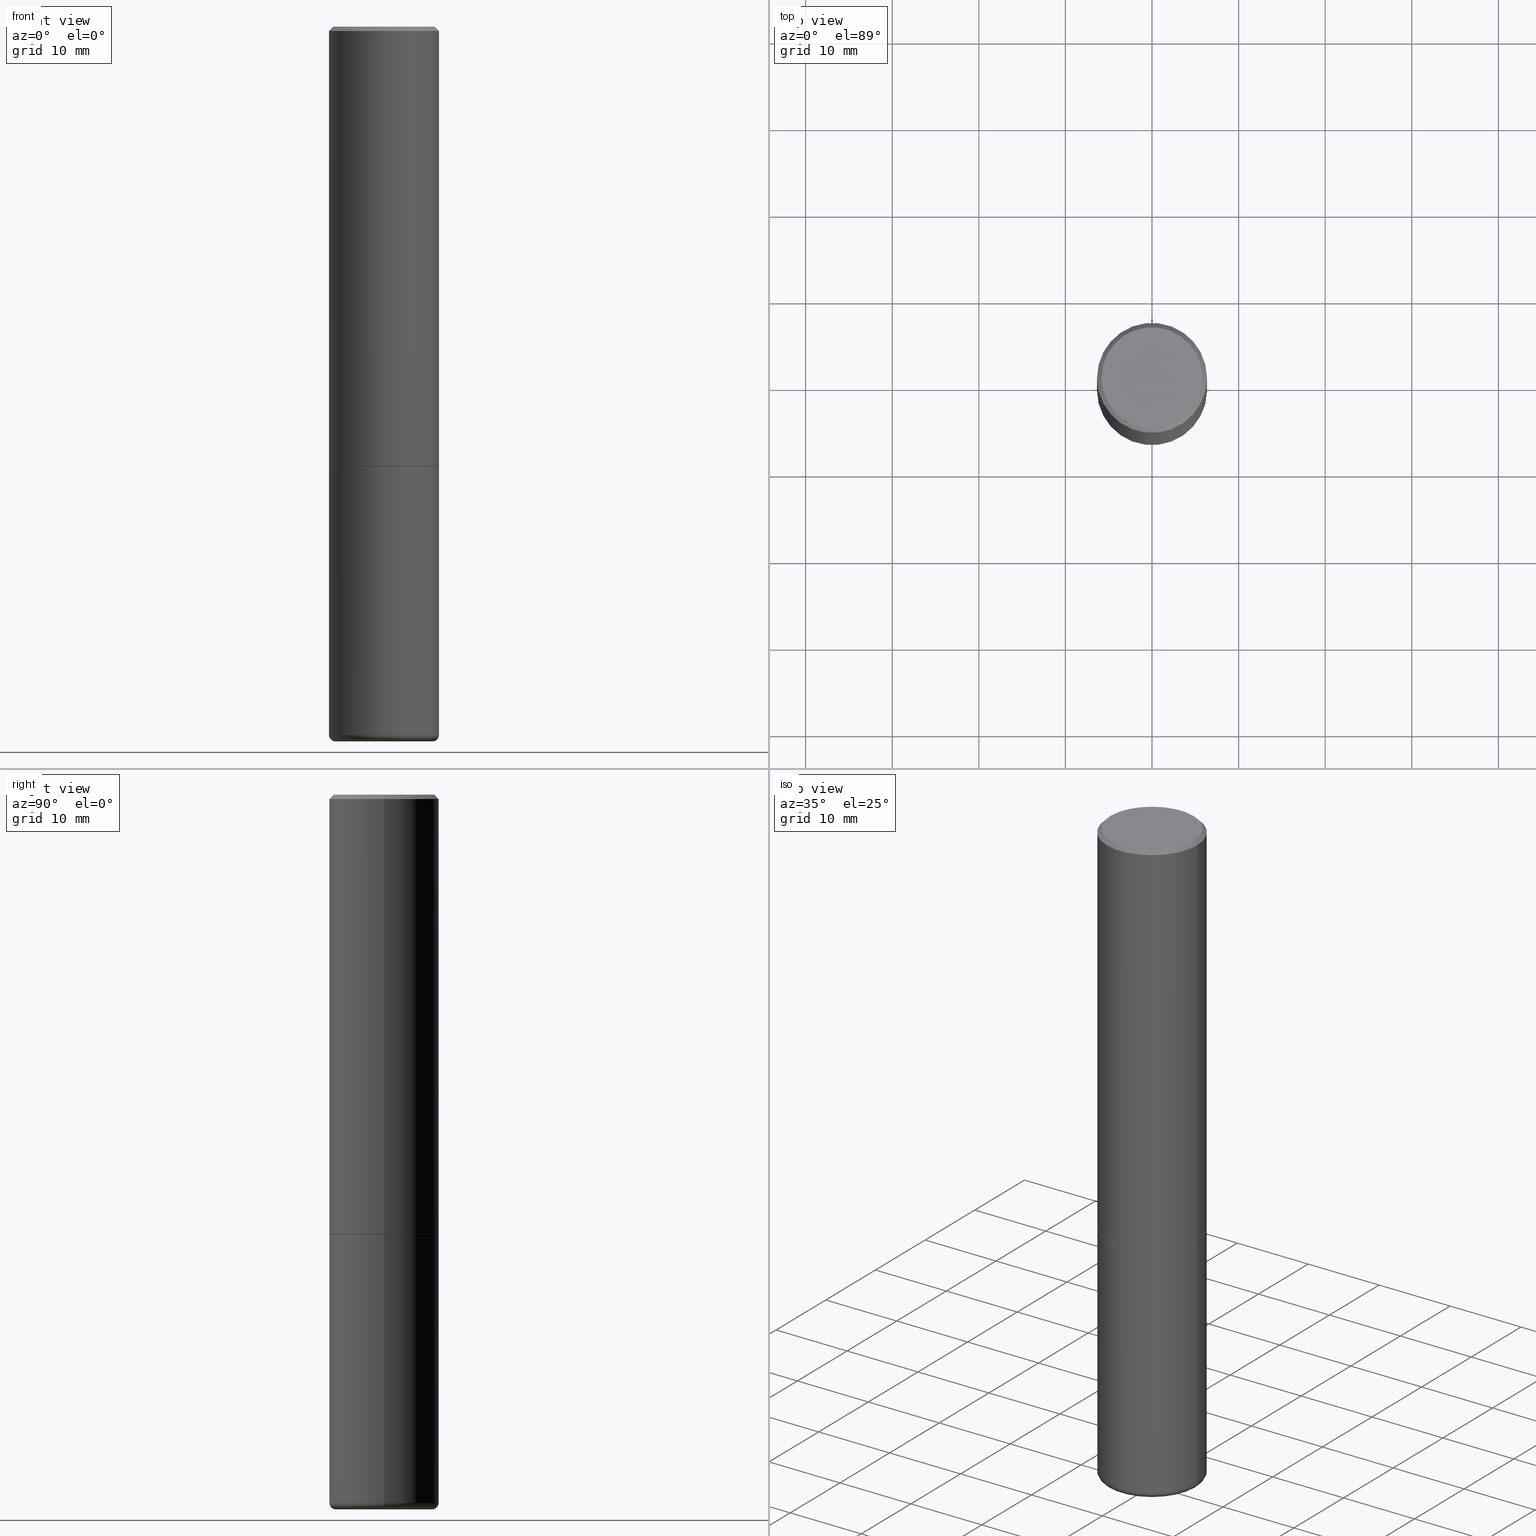
[diagram: canonical four-view strip — front | top / right | iso, engineering-drawing reading convention]
A machine part, canonical four-view strip (front | top / right | iso — engineering-drawing reading convention). The complete STEP part file that produces these views, byte-faithful:
ISO-10303-21;
HEADER;
FILE_DESCRIPTION (( 'STEP AP203' ),
    '1' );
FILE_NAME ('34306.STEP',
    '2022-11-02T20:15:12',
    ( '' ),
    ( '' ),
    'SwSTEP 2.0',
    'SolidWorks 2022',
    '' );
FILE_SCHEMA (( 'CONFIG_CONTROL_DESIGN' ));
ENDSEC;

DATA;
#1 = CARTESIAN_POINT ( 'NONE',  ( 4.890937612370302936E-31, -6.982962677686332285E-17, -0.02000000000000011838 ) ) ;
#2 = DIRECTION ( 'NONE',  ( 0.7071067811865232589, -2.468850131082003836E-15, 0.7071067811865715536 ) ) ;
#3 = EDGE_LOOP ( 'NONE', ( #414, #29, #124, #303 ) ) ;
#4 = EDGE_CURVE ( 'NONE', #46, #454, #482, .T. ) ;
#5 = LINE ( 'NONE', #8, #10 ) ;
#6 = VERTEX_POINT ( 'NONE', #384 ) ;
#7 = CIRCLE ( 'NONE', #299, 0.2197382039350491145 ) ;
#8 = CARTESIAN_POINT ( 'NONE',  ( -0.1930732039350490925, -9.998278899655613929E-15, -3.249767298070359800 ) ) ;
#9 = DIRECTION ( 'NONE',  ( 2.445468806185136597E-29, -3.491481338843145583E-15, -1.000000000000000000 ) ) ;
#10 = VECTOR ( 'NONE', #476, 39.37007874015748143 ) ;
#11 = VERTEX_POINT ( 'NONE', #183 ) ;
#12 = COORDINATED_UNIVERSAL_TIME_OFFSET ( 5, 0, .BEHIND. ) ;
#13 = ORIENTED_EDGE ( 'NONE', *, *, #403, .F. ) ;
#14 = PRODUCT ( '34306', '34306', '', ( #48 ) ) ;
#15 = ORIENTED_EDGE ( 'NONE', *, *, #139, .F. ) ;
#16 = DIRECTION ( 'NONE',  ( 0.7071067811865469066, -7.319954787623252890E-15, -0.7071067811865479058 ) ) ;
#17 = FACE_OUTER_BOUND ( 'NONE', #203, .T. ) ;
#18 = VECTOR ( 'NONE', #172, 39.37007874015748143 ) ;
#19 = EDGE_CURVE ( 'NONE', #238, #240, #488, .T. ) ;
#20 = AXIS2_PLACEMENT_3D ( 'NONE', #130, #468, #359 ) ;
#21 = CARTESIAN_POINT ( 'NONE',  ( 7.947773620101693940E-29, -1.134731435124022443E-14, -3.250000000000000000 ) ) ;
#22 = ADVANCED_FACE ( 'NONE', ( #405 ), #348, .T. ) ;
#23 = ADVANCED_FACE ( 'NONE', ( #217 ), #197, .T. ) ;
#24 = VECTOR ( 'NONE', #398, 39.37007874015748143 ) ;
#25 = CARTESIAN_POINT ( 'NONE',  ( -0.2499999999999995282, 1.776356839400247112E-15, -1.229733772563724063E-29 ) ) ;
#26 = EDGE_CURVE ( 'NONE', #396, #6, #399, .T. ) ;
#27 = DESIGN_CONTEXT ( 'detailed design', #107, 'design' ) ;
#28 = FACE_OUTER_BOUND ( 'NONE', #195, .T. ) ;
#29 = ORIENTED_EDGE ( 'NONE', *, *, #218, .T. ) ;
#30 = CARTESIAN_POINT ( 'NONE',  ( 4.890937612370302936E-31, -6.982962677686332285E-17, -0.02000000000000011838 ) ) ;
#31 = PERSON_AND_ORGANIZATION ( #413, #360 ) ;
#32 = AXIS2_PLACEMENT_3D ( 'NONE', #126, #474, #478 ) ;
#33 = PRODUCT_DEFINITION_FORMATION_WITH_SPECIFIED_SOURCE ( 'ANY', '', #14, .NOT_KNOWN. ) ;
#34 = DIRECTION ( 'NONE',  ( 1.000000000000000000, -6.982962677686270655E-15, 0.000000000000000000 ) ) ;
#35 = APPROVAL_STATUS ( 'not_yet_approved' ) ;
#36 = EDGE_CURVE ( 'NONE', #6, #430, #7, .T. ) ;
#37 = CARTESIAN_POINT ( 'NONE',  ( -0.2197382039350491145, -9.812890674299962335E-15, -3.250000000000000000 ) ) ;
#38 = CARTESIAN_POINT ( 'NONE',  ( -0.2197382039350491145, -9.626098782756011188E-15, -3.250000000000000000 ) ) ;
#39 = EDGE_LOOP ( 'NONE', ( #57, #181, #105, #235 ) ) ;
#40 = SECURITY_CLASSIFICATION_LEVEL ( 'unclassified' ) ;
#41 =( GEOMETRIC_REPRESENTATION_CONTEXT ( 3 ) GLOBAL_UNCERTAINTY_ASSIGNED_CONTEXT ( ( #148 ) ) GLOBAL_UNIT_ASSIGNED_CONTEXT ( ( #87, #285, #85 ) ) REPRESENTATION_CONTEXT ( 'NONE', 'WORKASPACE' ) );
#42 = DIRECTION ( 'NONE',  ( 1.000000000000000000, -6.982962677686266711E-15, 0.000000000000000000 ) ) ;
#43 = ORIENTED_EDGE ( 'NONE', *, *, #236, .F. ) ;
#44 = DIRECTION ( 'NONE',  ( -2.445468806185136597E-29, 3.491481338843145583E-15, 1.000000000000000000 ) ) ;
#45 = CARTESIAN_POINT ( 'NONE',  ( 0.000000000000000000, 0.000000000000000000, 0.000000000000000000 ) ) ;
#46 = VERTEX_POINT ( 'NONE', #59 ) ;
#47 = DIRECTION ( 'NONE',  ( 7.105427357601001859E-15, 1.000000000000000000, -3.491481338843145583E-15 ) ) ;
#48 = MECHANICAL_CONTEXT ( 'NONE', #366, 'mechanical' ) ;
#49 = ORIENTED_EDGE ( 'NONE', *, *, #389, .F. ) ;
#50 = AXIS2_PLACEMENT_3D ( 'NONE', #260, #110, #174 ) ;
#51 = AXIS2_PLACEMENT_3D ( 'NONE', #117, #155, #239 ) ;
#52 = DIRECTION ( 'NONE',  ( -1.000000000000000000, 6.982962677686265922E-15, -4.876176775795935793E-29 ) ) ;
#53 = AXIS2_PLACEMENT_3D ( 'NONE', #182, #44, #42 ) ;
#54 = ORIENTED_EDGE ( 'NONE', *, *, #441, .F. ) ;
#55 = EDGE_CURVE ( 'NONE', #444, #475, #162, .T. ) ;
#56 = CALENDAR_DATE ( 2022, 2, 11 ) ;
#57 = ORIENTED_EDGE ( 'NONE', *, *, #236, .T. ) ;
#58 = FACE_OUTER_BOUND ( 'NONE', #365, .T. ) ;
#59 = CARTESIAN_POINT ( 'NONE',  ( -0.2499999999999996114, -7.336411449154026516E-15, -2.000000000000000000 ) ) ;
#60 = CONICAL_SURFACE ( 'NONE', #313, 0.2499999999999993616, 0.7853981633974476129 ) ;
#61 = CONICAL_SURFACE ( 'NONE', #265, 0.2197382039350491145, 1.562069680534929894 ) ;
#62 = PRODUCT_DEFINITION_SHAPE ( 'NONE', 'NONE',  #170 ) ;
#63 = CC_DESIGN_DATE_AND_TIME_ASSIGNMENT ( #141, #225, ( #170 ) ) ;
#64 = DIRECTION ( 'NONE',  ( 1.000000000000000000, -6.982962677686266711E-15, 0.000000000000000000 ) ) ;
#65 = ORIENTED_EDGE ( 'NONE', *, *, #133, .T. ) ;
#66 = CARTESIAN_POINT ( 'NONE',  ( 0.1930732039350490925, -1.267108020581510942E-14, -3.249767298070359800 ) ) ;
#67 = VECTOR ( 'NONE', #324, 39.37007874015748143 ) ;
#68 = DIRECTION ( 'NONE',  ( 1.000000000000000000, -6.982962677686269866E-15, 0.000000000000000000 ) ) ;
#69 = DIRECTION ( 'NONE',  ( -1.000000000000000000, 6.982962677686266711E-15, 0.000000000000000000 ) ) ;
#70 = CARTESIAN_POINT ( 'NONE',  ( -0.2489999999999995828, -5.208412811295422462E-15, -2.000000000000000000 ) ) ;
#71 = EDGE_CURVE ( 'NONE', #430, #6, #445, .T. ) ;
#72 = ORIENTED_EDGE ( 'NONE', *, *, #449, .T. ) ;
#73 = DIRECTION ( 'NONE',  ( -2.445468806185136597E-29, 3.491481338843145583E-15, 1.000000000000000000 ) ) ;
#74 = DATE_AND_TIME ( #459, #432 ) ;
#75 = AXIS2_PLACEMENT_3D ( 'NONE', #273, #383, #425 ) ;
#76 = PRODUCT_RELATED_PRODUCT_CATEGORY ( 'detail', '', ( #14 ) ) ;
#77 = LINE ( 'NONE', #407, #98 ) ;
#78 = PERSON_AND_ORGANIZATION ( #413, #360 ) ;
#79 = EDGE_CURVE ( 'NONE', #240, #238, #402, .T. ) ;
#80 = ORIENTED_EDGE ( 'NONE', *, *, #274, .T. ) ;
#81 = CALENDAR_DATE ( 2022, 2, 11 ) ;
#82 = AXIS2_PLACEMENT_3D ( 'NONE', #201, #417, #472 ) ;
#83 = LOCAL_TIME ( 16, 15, 12.00000000000000000, #452 ) ;
#84 = CARTESIAN_POINT ( 'NONE',  ( 0.2499999999999994449, -1.745740669421562733E-15, 1.219044193948981146E-29 ) ) ;
#85 =( NAMED_UNIT ( * ) SI_UNIT ( $, .STERADIAN. ) SOLID_ANGLE_UNIT ( ) );
#86 = EDGE_LOOP ( 'NONE', ( #49, #136, #246, #222 ) ) ;
#87 =( CONVERSION_BASED_UNIT ( 'INCH', #333 ) LENGTH_UNIT ( ) NAMED_UNIT ( #397 ) );
#88 = ORIENTED_EDGE ( 'NONE', *, *, #122, .T. ) ;
#89 = ADVANCED_FACE ( 'NONE', ( #437 ), #440, .T. ) ;
#90 = COORDINATED_UNIVERSAL_TIME_OFFSET ( 5, 0, .BEHIND. ) ;
#91 = ORIENTED_EDGE ( 'NONE', *, *, #71, .T. ) ;
#92 = CC_DESIGN_PERSON_AND_ORGANIZATION_ASSIGNMENT ( #78, #381, ( #33 ) ) ;
#93 = AXIS2_PLACEMENT_3D ( 'NONE', #428, #47, #469 ) ;
#94 = DIRECTION ( 'NONE',  ( 1.000000000000000000, -6.982962677686266711E-15, 0.000000000000000000 ) ) ;
#95 = VERTEX_POINT ( 'NONE', #375 ) ;
#96 = CARTESIAN_POINT ( 'NONE',  ( -0.2499999999999994449, 1.776356839400246520E-15, -1.229733772563723783E-29 ) ) ;
#97 = ADVANCED_FACE ( 'NONE', ( #259 ), #401, .F. ) ;
#98 = VECTOR ( 'NONE', #2, 39.37007874015748854 ) ;
#99 = AXIS2_PLACEMENT_3D ( 'NONE', #45, #191, #355 ) ;
#100 = DIRECTION ( 'NONE',  ( 2.445468806185136597E-29, -3.491481338843145583E-15, -1.000000000000000000 ) ) ;
#101 = EDGE_CURVE ( 'NONE', #321, #46, #448, .T. ) ;
#102 = CARTESIAN_POINT ( 'NONE',  ( 4.890937612370273194E-29, -6.982962677686291165E-15, -2.000000000000000000 ) ) ;
#103 = ADVANCED_FACE ( 'NONE', ( #302 ), #60, .T. ) ;
#104 = AXIS2_PLACEMENT_3D ( 'NONE', #142, #309, #451 ) ;
#105 = ORIENTED_EDGE ( 'NONE', *, *, #71, .F. ) ;
#106 = DIRECTION ( 'NONE',  ( -0.7071067811865232589, 7.493145998870265808E-15, 0.7071067811865715536 ) ) ;
#107 = APPLICATION_CONTEXT ( 'configuration controlled 3d designs of mechanical parts and assemblies' ) ;
#108 = CIRCLE ( 'NONE', #489, 0.2489999999999995828 ) ;
#109 = CC_DESIGN_APPROVAL ( #257, ( #232 ) ) ;
#110 = DIRECTION ( 'NONE',  ( -2.445468806185136597E-29, 3.491481338843145583E-15, 1.000000000000000000 ) ) ;
#111 = COORDINATED_UNIVERSAL_TIME_OFFSET ( 5, 0, .BEHIND. ) ;
#112 = MANIFOLD_SOLID_BREP ( 'Body-Move/Copy2[2]', #287 ) ;
#113 = APPROVAL ( #186, 'UNSPECIFIED' ) ;
#114 = CARTESIAN_POINT ( 'NONE',  ( 7.874412349394904045E-29, -1.124257389942225570E-14, -3.220001142308074549 ) ) ;
#115 = ORIENTED_EDGE ( 'NONE', *, *, #206, .T. ) ;
#116 = EDGE_LOOP ( 'NONE', ( #54, #318, #72, #387 ) ) ;
#117 = CARTESIAN_POINT ( 'NONE',  ( 7.947204554791619182E-29, -1.134650187679537143E-14, -3.249767298070359800 ) ) ;
#118 = ORIENTED_EDGE ( 'NONE', *, *, #403, .T. ) ;
#119 = CARTESIAN_POINT ( 'NONE',  ( 4.890937612370273194E-29, -6.982962677686291165E-15, -2.000000000000000000 ) ) ;
#120 = DATE_AND_TIME ( #421, #178 ) ;
#121 = VERTEX_POINT ( 'NONE', #70 ) ;
#122 = EDGE_CURVE ( 'NONE', #160, #396, #255, .T. ) ;
#123 = FACE_OUTER_BOUND ( 'NONE', #427, .T. ) ;
#124 = ORIENTED_EDGE ( 'NONE', *, *, #228, .T. ) ;
#125 = DIRECTION ( 'NONE',  ( 1.000000000000000000, -6.982962677686265922E-15, 0.000000000000000000 ) ) ;
#126 = CARTESIAN_POINT ( 'NONE',  ( 1.606081415867835940E-15, 0.2299999999999992606, -8.009064516888707148E-16 ) ) ;
#127 = EDGE_LOOP ( 'NONE', ( #286, #446 ) ) ;
#128 = DIRECTION ( 'NONE',  ( -1.000000000000000000, 6.982962677686265922E-15, 0.000000000000000000 ) ) ;
#129 = CARTESIAN_POINT ( 'NONE',  ( 4.890937612370273194E-29, -6.982962677686291165E-15, -2.000000000000000000 ) ) ;
#130 = CARTESIAN_POINT ( 'NONE',  ( 0.2200000000000001676, -1.277882568851323406E-14, -3.220001142308074993 ) ) ;
#131 = CARTESIAN_POINT ( 'NONE',  ( -0.2499999999999993616, 1.675911042644698843E-15, -0.02000000000000011838 ) ) ;
#132 = CIRCLE ( 'NONE', #163, 0.1930732039350490925 ) ;
#133 = EDGE_CURVE ( 'NONE', #396, #11, #132, .T. ) ;
#134 = DIRECTION ( 'NONE',  ( 0.9999619230641714207, -6.890705306874825328E-15, -0.008726535498369011531 ) ) ;
#135 = DIRECTION ( 'NONE',  ( -2.445468806185136597E-29, 3.491481338843145583E-15, 1.000000000000000000 ) ) ;
#136 = ORIENTED_EDGE ( 'NONE', *, *, #193, .F. ) ;
#137 = CARTESIAN_POINT ( 'NONE',  ( 7.930716556418764265E-29, -1.132296138489128416E-14, -3.243025033220710451 ) ) ;
#138 = AXIS2_PLACEMENT_3D ( 'NONE', #376, #340, #301 ) ;
#139 = EDGE_CURVE ( 'NONE', #353, #95, #431, .T. ) ;
#140 = LINE ( 'NONE', #352, #306 ) ;
#141 = DATE_AND_TIME ( #56, #252 ) ;
#142 = CARTESIAN_POINT ( 'NONE',  ( 7.874412349394904045E-29, -1.124257389942225570E-14, -3.220001142308074549 ) ) ;
#143 = LINE ( 'NONE', #37, #251 ) ;
#144 = ORIENTED_EDGE ( 'NONE', *, *, #139, .T. ) ;
#145 = AXIS2_PLACEMENT_3D ( 'NONE', #377, #490, #261 ) ;
#146 = CC_DESIGN_PERSON_AND_ORGANIZATION_ASSIGNMENT ( #382, #227, ( #33 ) ) ;
#147 = APPROVAL_PERSON_ORGANIZATION ( #31, #257, #316 ) ;
#148 = UNCERTAINTY_MEASURE_WITH_UNIT (LENGTH_MEASURE( 1.000000000000000082E-05 ), #87, 'distance_accuracy_value', 'NONE');
#149 = DIRECTION ( 'NONE',  ( -2.445468806185136597E-29, 3.491481338843145583E-15, 1.000000000000000000 ) ) ;
#150 = DIRECTION ( 'NONE',  ( 2.445468806185136597E-29, -3.491481338843145583E-15, -1.000000000000000000 ) ) ;
#151 = ORIENTED_EDGE ( 'NONE', *, *, #133, .F. ) ;
#152 = CARTESIAN_POINT ( 'NONE',  ( 7.947204554791619182E-29, -1.134650187679537143E-14, -3.249767298070359800 ) ) ;
#153 = LINE ( 'NONE', #84, #67 ) ;
#154 = ORIENTED_EDGE ( 'NONE', *, *, #122, .F. ) ;
#155 = DIRECTION ( 'NONE',  ( -2.445468806185136597E-29, 3.491481338843145583E-15, 1.000000000000000000 ) ) ;
#156 = ADVANCED_FACE ( 'NONE', ( #28 ), #277, .T. ) ;
#157 = PERSON_AND_ORGANIZATION ( #413, #360 ) ;
#158 = ORIENTED_EDGE ( 'NONE', *, *, #254, .F. ) ;
#159 = FACE_OUTER_BOUND ( 'NONE', #438, .T. ) ;
#160 = VERTEX_POINT ( 'NONE', #137 ) ;
#161 = CARTESIAN_POINT ( 'NONE',  ( -0.2499999999999993616, 1.675911042644698843E-15, -0.02000000000000011838 ) ) ;
#162 = CIRCLE ( 'NONE', #199, 0.2299999999999992606 ) ;
#163 = AXIS2_PLACEMENT_3D ( 'NONE', #485, #214, #68 ) ;
#164 = CYLINDRICAL_SURFACE ( 'NONE', #395, 0.2499999999999995282 ) ;
#165 = APPROVAL_DATE_TIME ( #120, #244 ) ;
#166 = DIRECTION ( 'NONE',  ( -2.445468806185136597E-29, 3.491481338843145583E-15, 1.000000000000000000 ) ) ;
#167 = CARTESIAN_POINT ( 'NONE',  ( -1.043851414335219820E-46, 1.490343170380447200E-32, 4.268512490100411279E-18 ) ) ;
#168 = CIRCLE ( 'NONE', #104, 0.2499999999999994449 ) ;
#169 = LOCAL_TIME ( 16, 15, 12.00000000000000000, #111 ) ;
#170 = PRODUCT_DEFINITION ( 'UNKNOWN', '', #33, #27 ) ;
#171 = EDGE_LOOP ( 'NONE', ( #144, #356, #205, #226 ) ) ;
#172 = DIRECTION ( 'NONE',  ( 0.9993908270190957621, -6.978169709227541488E-15, -0.03489949670250108021 ) ) ;
#173 = DIRECTION ( 'NONE',  ( 1.000000000000000000, -6.982962677686266711E-15, 0.000000000000000000 ) ) ;
#174 = DIRECTION ( 'NONE',  ( 1.000000000000000000, -6.982962677686265922E-15, 0.000000000000000000 ) ) ;
#175 = CYLINDRICAL_SURFACE ( 'NONE', #145, 0.2499999999999994449 ) ;
#176 = TOROIDAL_SURFACE ( 'NONE', #337, 0.2200000000000001676, 0.02999999999999953398 ) ;
#177 = DIRECTION ( 'NONE',  ( 2.445468806185136597E-29, -3.491481338843145583E-15, -1.000000000000000000 ) ) ;
#178 = LOCAL_TIME ( 16, 15, 12.00000000000000000, #12 ) ;
#179 = CARTESIAN_POINT ( 'NONE',  ( -0.2299999999999992606, 1.640996229256267392E-15, 4.268512490089056766E-18 ) ) ;
#180 = DIRECTION ( 'NONE',  ( 1.000000000000000000, -6.982962677686266711E-15, 4.876225828469324576E-29 ) ) ;
#181 = ORIENTED_EDGE ( 'NONE', *, *, #26, .T. ) ;
#182 = CARTESIAN_POINT ( 'NONE',  ( 4.888492143564087591E-29, -6.979471196347447369E-15, -1.998999999999999888 ) ) ;
#183 = CARTESIAN_POINT ( 'NONE',  ( -0.1930732039350490925, -9.998278899655613929E-15, -3.249767298070359800 ) ) ;
#184 = AXIS2_PLACEMENT_3D ( 'NONE', #335, #298, #64 ) ;
#185 = EDGE_CURVE ( 'NONE', #121, #450, #322, .T. ) ;
#186 = APPROVAL_STATUS ( 'not_yet_approved' ) ;
#187 = ORIENTED_EDGE ( 'NONE', *, *, #36, .F. ) ;
#188 = CALENDAR_DATE ( 2022, 2, 11 ) ;
#189 = DIRECTION ( 'NONE',  ( 1.000000000000000000, -6.982962677686262766E-15, 4.883557194083111780E-29 ) ) ;
#190 = FACE_OUTER_BOUND ( 'NONE', #39, .T. ) ;
#191 = DIRECTION ( 'NONE',  ( 0.000000000000000000, 0.000000000000000000, 1.000000000000000000 ) ) ;
#192 = ORIENTED_EDGE ( 'NONE', *, *, #198, .T. ) ;
#193 = EDGE_CURVE ( 'NONE', #475, #444, #288, .T. ) ;
#194 = CARTESIAN_POINT ( 'NONE',  ( 7.947204554791619182E-29, -1.134650187679537143E-14, -3.249767298070359800 ) ) ;
#195 = EDGE_LOOP ( 'NONE', ( #158, #91, #118, #471 ) ) ;
#196 = CARTESIAN_POINT ( 'NONE',  ( 0.2499999999999993616, -1.784954126219741850E-15, -0.02000000000000011838 ) ) ;
#197 = CONICAL_SURFACE ( 'NONE', #220, 0.2489999999999995828, 0.7853981633974141952 ) ;
#198 = EDGE_CURVE ( 'NONE', #326, #454, #307, .T. ) ;
#199 = AXIS2_PLACEMENT_3D ( 'NONE', #167, #210, #370 ) ;
#200 = AXIS2_PLACEMENT_3D ( 'NONE', #487, #305, #180 ) ;
#201 = CARTESIAN_POINT ( 'NONE',  ( 4.890937612370273194E-29, -6.982962677686291165E-15, -2.000000000000000000 ) ) ;
#202 = DIRECTION ( 'NONE',  ( -1.000000000000000000, 6.982962677686265922E-15, 0.000000000000000000 ) ) ;
#203 = EDGE_LOOP ( 'NONE', ( #115, #248, #317, #275 ) ) ;
#204 = DIRECTION ( 'NONE',  ( 2.438088387897960049E-29, -3.491481338843145188E-15, -1.000000000000000000 ) ) ;
#205 = ORIENTED_EDGE ( 'NONE', *, *, #19, .F. ) ;
#206 = EDGE_CURVE ( 'NONE', #326, #321, #168, .T. ) ;
#207 = CARTESIAN_POINT ( 'NONE',  ( 7.947773620101693940E-29, -1.134731435124022443E-14, -3.250000000000000000 ) ) ;
#208 = APPLICATION_PROTOCOL_DEFINITION ( 'international standard', 'config_control_design', 1994, #366 ) ;
#209 = VECTOR ( 'NONE', #410, 39.37007874015748143 ) ;
#210 = DIRECTION ( 'NONE',  ( -2.445468806185136597E-29, 3.491481338843145583E-15, 1.000000000000000000 ) ) ;
#211 = CARTESIAN_POINT ( 'NONE',  ( 0.000000000000000000, 0.000000000000000000, 0.000000000000000000 ) ) ;
#212 = ADVANCED_FACE ( 'NONE', ( #281 ), #327, .T. ) ;
#213 = DIRECTION ( 'NONE',  ( 1.000000000000000000, -6.982962677686266711E-15, 4.876176775795935232E-29 ) ) ;
#214 = DIRECTION ( 'NONE',  ( -2.445468806185136597E-29, 3.491481338843145583E-15, 1.000000000000000000 ) ) ;
#215 = CIRCLE ( 'NONE', #53, 0.2499999999999995837 ) ;
#216 = DIRECTION ( 'NONE',  ( -2.445468806185136597E-29, 3.491481338843145583E-15, 1.000000000000000000 ) ) ;
#217 = FACE_OUTER_BOUND ( 'NONE', #116, .T. ) ;
#218 = EDGE_CURVE ( 'NONE', #95, #353, #215, .T. ) ;
#219 = CARTESIAN_POINT ( 'NONE',  ( 7.874412349394905166E-29, -1.124257389942225570E-14, -3.220001142308074993 ) ) ;
#220 = AXIS2_PLACEMENT_3D ( 'NONE', #129, #295, #330 ) ;
#221 = AXIS2_PLACEMENT_3D ( 'NONE', #114, #73, #34 ) ;
#222 = ORIENTED_EDGE ( 'NONE', *, *, #79, .T. ) ;
#223 = DATE_AND_TIME ( #188, #169 ) ;
#224 = ORIENTED_EDGE ( 'NONE', *, *, #55, .F. ) ;
#225 = DATE_TIME_ROLE ( 'creation_date' ) ;
#226 = ORIENTED_EDGE ( 'NONE', *, *, #228, .F. ) ;
#227 = PERSON_AND_ORGANIZATION_ROLE ( 'design_supplier' ) ;
#228 = EDGE_CURVE ( 'NONE', #353, #238, #153, .T. ) ;
#229 = ORIENTED_EDGE ( 'NONE', *, *, #4, .T. ) ;
#230 = DATE_AND_TIME ( #81, #83 ) ;
#231 = CONICAL_SURFACE ( 'NONE', #464, 0.1930732039350490925, 1.535889741755009918 ) ;
#232 = SECURITY_CLASSIFICATION ( '', '', #40 ) ;
#233 = CARTESIAN_POINT ( 'NONE',  ( 4.890937612370273194E-29, -6.982962677686291165E-15, -2.000000000000000000 ) ) ;
#234 = ADVANCED_FACE ( 'NONE', ( #190 ), #379, .F. ) ;
#235 = ORIENTED_EDGE ( 'NONE', *, *, #435, .F. ) ;
#236 = EDGE_CURVE ( 'NONE', #11, #396, #264, .T. ) ;
#237 = DIRECTION ( 'NONE',  ( 2.445468806185136597E-29, -3.491481338843145583E-15, -1.000000000000000000 ) ) ;
#238 = VERTEX_POINT ( 'NONE', #361 ) ;
#239 = DIRECTION ( 'NONE',  ( 1.000000000000000000, -6.982962677686269866E-15, 0.000000000000000000 ) ) ;
#240 = VERTEX_POINT ( 'NONE', #131 ) ;
#241 = VECTOR ( 'NONE', #134, 39.37007874015748854 ) ;
#242 = CIRCLE ( 'NONE', #221, 0.2499999999999994449 ) ;
#243 = CARTESIAN_POINT ( 'NONE',  ( 0.2499999999999994449, -1.298831456884381922E-14, -3.220001142308074549 ) ) ;
#244 = APPROVAL ( #470, 'UNSPECIFIED' ) ;
#245 = APPLICATION_PROTOCOL_DEFINITION ( 'international standard', 'config_control_design', 1994, #107 ) ;
#246 = ORIENTED_EDGE ( 'NONE', *, *, #338, .T. ) ;
#247 = PLANE ( 'NONE',  #331 ) ;
#248 = ORIENTED_EDGE ( 'NONE', *, *, #101, .T. ) ;
#249 = ADVANCED_FACE ( 'NONE', ( #345 ), #176, .T. ) ;
#250 = LINE ( 'NONE', #196, #418 ) ;
#251 = VECTOR ( 'NONE', #310, 39.37007874015748854 ) ;
#252 = LOCAL_TIME ( 16, 15, 12.00000000000000000, #90 ) ;
#253 = ADVANCED_FACE ( 'NONE', ( #159 ), #247, .F. ) ;
#254 = EDGE_CURVE ( 'NONE', #430, #321, #483, .T. ) ;
#255 = LINE ( 'NONE', #66, #18 ) ;
#256 = DIRECTION ( 'NONE',  ( -2.445468806185136597E-29, 3.491481338843145583E-15, 1.000000000000000000 ) ) ;
#257 = APPROVAL ( #35, 'UNSPECIFIED' ) ;
#258 = DIRECTION ( 'NONE',  ( 1.000000000000000000, -6.982962677686266711E-15, 0.000000000000000000 ) ) ;
#259 = FACE_OUTER_BOUND ( 'NONE', #127, .T. ) ;
#260 = CARTESIAN_POINT ( 'NONE',  ( 4.890937612370273194E-29, -6.982962677686291165E-15, -2.000000000000000000 ) ) ;
#261 = DIRECTION ( 'NONE',  ( 1.000000000000000000, -6.982962677686266711E-15, 4.876176775795935232E-29 ) ) ;
#262 = ORIENTED_EDGE ( 'NONE', *, *, #269, .T. ) ;
#263 = PERSON_AND_ORGANIZATION ( #413, #360 ) ;
#264 = CIRCLE ( 'NONE', #51, 0.1930732039350490925 ) ;
#265 = AXIS2_PLACEMENT_3D ( 'NONE', #207, #150, #128 ) ;
#266 = ORIENTED_EDGE ( 'NONE', *, *, #206, .F. ) ;
#267 = COORDINATED_UNIVERSAL_TIME_OFFSET ( 5, 0, .BEHIND. ) ;
#268 = CC_DESIGN_SECURITY_CLASSIFICATION ( #232, ( #33 ) ) ;
#269 = EDGE_CURVE ( 'NONE', #160, #11, #5, .T. ) ;
#270 = ORIENTED_EDGE ( 'NONE', *, *, #389, .T. ) ;
#271 = PERSON_AND_ORGANIZATION ( #413, #360 ) ;
#272 = EDGE_LOOP ( 'NONE', ( #422, #462 ) ) ;
#273 = CARTESIAN_POINT ( 'NONE',  ( 0.000000000000000000, 0.000000000000000000, 0.000000000000000000 ) ) ;
#274 = EDGE_CURVE ( 'NONE', #454, #46, #372, .T. ) ;
#275 = ORIENTED_EDGE ( 'NONE', *, *, #198, .F. ) ;
#276 = AXIS2_PLACEMENT_3D ( 'NONE', #21, #166, #480 ) ;
#277 = TOROIDAL_SURFACE ( 'NONE', #439, 0.2200000000000001676, 0.02999999999999953398 ) ;
#278 = APPROVAL_PERSON_ORGANIZATION ( #263, #113, #455 ) ;
#279 = ORIENTED_EDGE ( 'NONE', *, *, #19, .T. ) ;
#280 = LINE ( 'NONE', #161, #369 ) ;
#281 = FACE_OUTER_BOUND ( 'NONE', #3, .T. ) ;
#282 = PERSON_AND_ORGANIZATION ( #413, #360 ) ;
#283 = ORIENTED_EDGE ( 'NONE', *, *, #312, .T. ) ;
#284 = DIRECTION ( 'NONE',  ( 1.000000000000000000, -6.982962677686265922E-15, 0.000000000000000000 ) ) ;
#285 =( NAMED_UNIT ( * ) PLANE_ANGLE_UNIT ( ) SI_UNIT ( $, .RADIAN. ) );
#286 = ORIENTED_EDGE ( 'NONE', *, *, #312, .F. ) ;
#287 = CLOSED_SHELL ( 'NONE', ( #293, #416, #103, #22, #212, #23, #97, #479 ) ) ;
#288 = CIRCLE ( 'NONE', #200, 0.2299999999999992606 ) ;
#289 = MANIFOLD_SOLID_BREP ( 'Body-Move/Copy2[1]', #385 ) ;
#290 = APPROVAL_PERSON_ORGANIZATION ( #157, #244, #320 ) ;
#291 = FACE_OUTER_BOUND ( 'NONE', #363, .T. ) ;
#292 = ORIENTED_EDGE ( 'NONE', *, *, #338, .F. ) ;
#293 = ADVANCED_FACE ( 'NONE', ( #291 ), #349, .T. ) ;
#294 = CARTESIAN_POINT ( 'NONE',  ( 0.2499999999999995837, -8.725211865769010891E-15, -1.998999999999999888 ) ) ;
#295 = DIRECTION ( 'NONE',  ( -2.445468806185136597E-29, 3.491481338843145583E-15, 1.000000000000000000 ) ) ;
#296 =( LENGTH_UNIT ( ) NAMED_UNIT ( * ) SI_UNIT ( $, .METRE. ) );
#297 = FACE_OUTER_BOUND ( 'NONE', #171, .T. ) ;
#298 = DIRECTION ( 'NONE',  ( -2.445468806185136597E-29, 3.491481338843145583E-15, 1.000000000000000000 ) ) ;
#299 = AXIS2_PLACEMENT_3D ( 'NONE', #436, #429, #125 ) ;
#300 = CONICAL_SURFACE ( 'NONE', #358, 0.1930732039350490925, 1.535889741755009918 ) ;
#301 = DIRECTION ( 'NONE',  ( 1.000000000000000000, -6.982962677686265922E-15, 4.876176775795935793E-29 ) ) ;
#302 = FACE_OUTER_BOUND ( 'NONE', #420, .T. ) ;
#303 = ORIENTED_EDGE ( 'NONE', *, *, #79, .F. ) ;
#304 = VECTOR ( 'NONE', #406, 39.37007874015748143 ) ;
#305 = DIRECTION ( 'NONE',  ( -2.445468806185136597E-29, 3.491481338843145583E-15, 1.000000000000000000 ) ) ;
#306 = VECTOR ( 'NONE', #106, 39.37007874015748854 ) ;
#307 = LINE ( 'NONE', #311, #209 ) ;
#308 = ORIENTED_EDGE ( 'NONE', *, *, #101, .F. ) ;
#309 = DIRECTION ( 'NONE',  ( -2.445468806185136597E-29, 3.491481338843145583E-15, 1.000000000000000000 ) ) ;
#310 = DIRECTION ( 'NONE',  ( -0.9999619230641714207, 6.952228252019186602E-15, -0.008726535498369011531 ) ) ;
#311 = CARTESIAN_POINT ( 'NONE',  ( 0.2499999999999995282, -1.745740669421563325E-15, 1.219044193948981566E-29 ) ) ;
#312 = EDGE_CURVE ( 'NONE', #450, #121, #108, .T. ) ;
#313 = AXIS2_PLACEMENT_3D ( 'NONE', #442, #100, #404 ) ;
#314 = AXIS2_PLACEMENT_3D ( 'NONE', #342, #216, #373 ) ;
#315 = ORIENTED_EDGE ( 'NONE', *, *, #435, .T. ) ;
#316 = APPROVAL_ROLE ( '' ) ;
#317 = ORIENTED_EDGE ( 'NONE', *, *, #274, .F. ) ;
#318 = ORIENTED_EDGE ( 'NONE', *, *, #185, .T. ) ;
#319 = DIRECTION ( 'NONE',  ( 2.445468806185136597E-29, -3.491481338843145583E-15, -1.000000000000000000 ) ) ;
#320 = APPROVAL_ROLE ( '' ) ;
#321 = VERTEX_POINT ( 'NONE', #323 ) ;
#322 = CIRCLE ( 'NONE', #409, 0.2489999999999995828 ) ;
#323 = CARTESIAN_POINT ( 'NONE',  ( -0.2499999999999994449, -7.336411449154026516E-15, -3.220001142308074549 ) ) ;
#324 = DIRECTION ( 'NONE',  ( -2.445468806185136877E-29, 3.491481338843145188E-15, 1.000000000000000000 ) ) ;
#325 = PERSON_AND_ORGANIZATION_ROLE ( 'design_owner' ) ;
#326 = VERTEX_POINT ( 'NONE', #243 ) ;
#327 = CYLINDRICAL_SURFACE ( 'NONE', #75, 0.2499999999999994449 ) ;
#328 = ORIENTED_EDGE ( 'NONE', *, *, #449, .F. ) ;
#329 = DIRECTION ( 'NONE',  ( -0.7071067811865469066, 2.468850131082251144E-15, -0.7071067811865479058 ) ) ;
#330 = DIRECTION ( 'NONE',  ( 1.000000000000000000, -6.982962677686266711E-15, 0.000000000000000000 ) ) ;
#331 = AXIS2_PLACEMENT_3D ( 'NONE', #354, #204, #52 ) ;
#332 = CARTESIAN_POINT ( 'NONE',  ( 0.000000000000000000, 0.000000000000000000, 0.000000000000000000 ) ) ;
#333 = LENGTH_MEASURE_WITH_UNIT ( LENGTH_MEASURE( 0.02539999999999999897 ), #296 );
#334 = CC_DESIGN_DATE_AND_TIME_ASSIGNMENT ( #223, #492, ( #232 ) ) ;
#335 = CARTESIAN_POINT ( 'NONE',  ( 4.890937612370302936E-31, -6.982962677686332285E-17, -0.02000000000000011838 ) ) ;
#336 = AXIS2_PLACEMENT_3D ( 'NONE', #211, #371, #213 ) ;
#337 = AXIS2_PLACEMENT_3D ( 'NONE', #391, #460, #189 ) ;
#338 = EDGE_CURVE ( 'NONE', #475, #240, #280, .T. ) ;
#339 = ORIENTED_EDGE ( 'NONE', *, *, #36, .T. ) ;
#340 = DIRECTION ( 'NONE',  ( -2.438088387897960049E-29, 3.491481338843145188E-15, 1.000000000000000000 ) ) ;
#341 = ADVANCED_BREP_SHAPE_REPRESENTATION ( '34306', ( #289, #112, #99 ), #41 ) ;
#342 = CARTESIAN_POINT ( 'NONE',  ( 4.888492143564087591E-29, -6.979471196347447369E-15, -1.998999999999999888 ) ) ;
#343 = ADVANCED_FACE ( 'NONE', ( #424 ), #231, .F. ) ;
#344 = EDGE_CURVE ( 'NONE', #95, #240, #463, .T. ) ;
#345 = FACE_OUTER_BOUND ( 'NONE', #486, .T. ) ;
#346 = CARTESIAN_POINT ( 'NONE',  ( 0.2489999999999995828, -8.721720384430167884E-15, -2.000000000000000000 ) ) ;
#347 = APPROVAL_DATE_TIME ( #74, #113 ) ;
#348 = CONICAL_SURFACE ( 'NONE', #378, 0.2499999999999993616, 0.7853981633974476129 ) ;
#349 = CONICAL_SURFACE ( 'NONE', #82, 0.2489999999999995828, 0.7853981633974141952 ) ;
#350 = CARTESIAN_POINT ( 'NONE',  ( 0.2299999999999992606, -1.681434332853594278E-15, 4.268512490111905999E-18 ) ) ;
#351 = ADVANCED_FACE ( 'NONE', ( #58 ), #61, .F. ) ;
#352 = CARTESIAN_POINT ( 'NONE',  ( -0.2489999999999995828, -5.213711265643644864E-15, -2.000000000000000000 ) ) ;
#353 = VERTEX_POINT ( 'NONE', #294 ) ;
#354 = CARTESIAN_POINT ( 'NONE',  ( 1.745740669421612826E-15, 0.2499999999999926448, -2.000000000000000888 ) ) ;
#355 = DIRECTION ( 'NONE',  ( 1.000000000000000000, 0.000000000000000000, 0.000000000000000000 ) ) ;
#356 = ORIENTED_EDGE ( 'NONE', *, *, #344, .T. ) ;
#357 = ORIENTED_EDGE ( 'NONE', *, *, #26, .F. ) ;
#358 = AXIS2_PLACEMENT_3D ( 'NONE', #194, #237, #392 ) ;
#359 = DIRECTION ( 'NONE',  ( 1.000000000000000000, -6.982962677686244622E-15, 0.000000000000000000 ) ) ;
#360 = ORGANIZATION ( 'UNSPECIFIED', 'UNSPECIFIED', '' ) ;
#361 = CARTESIAN_POINT ( 'NONE',  ( 0.2499999999999993616, -1.784954126219741850E-15, -0.02000000000000011838 ) ) ;
#362 = ADVANCED_FACE ( 'NONE', ( #17 ), #164, .T. ) ;
#363 = EDGE_LOOP ( 'NONE', ( #283, #461, #15, #328 ) ) ;
#364 = DIRECTION ( 'NONE',  ( -2.445468806185136597E-29, 3.491481338843145583E-15, 1.000000000000000000 ) ) ;
#365 = EDGE_LOOP ( 'NONE', ( #357, #65, #315, #187 ) ) ;
#366 = APPLICATION_CONTEXT ( 'configuration controlled 3d designs of mechanical parts and assemblies' ) ;
#367 = DIRECTION ( 'NONE',  ( -2.445468806185136597E-29, 3.491481338843145583E-15, 1.000000000000000000 ) ) ;
#368 = PERSON_AND_ORGANIZATION ( #413, #360 ) ;
#369 = VECTOR ( 'NONE', #329, 39.37007874015748854 ) ;
#370 = DIRECTION ( 'NONE',  ( 1.000000000000000000, -6.982962677686266711E-15, 4.876225828469324576E-29 ) ) ;
#371 = DIRECTION ( 'NONE',  ( -2.445468806185136597E-29, 3.491481338843145583E-15, 1.000000000000000000 ) ) ;
#372 = CIRCLE ( 'NONE', #447, 0.2499999999999996114 ) ;
#373 = DIRECTION ( 'NONE',  ( 1.000000000000000000, -6.982962677686266711E-15, 0.000000000000000000 ) ) ;
#374 = CC_DESIGN_PERSON_AND_ORGANIZATION_ASSIGNMENT ( #282, #426, ( #170 ) ) ;
#375 = CARTESIAN_POINT ( 'NONE',  ( -0.2499999999999995559, -1.748293572161906447E-15, -1.998999999999999888 ) ) ;
#376 = CARTESIAN_POINT ( 'NONE',  ( 4.890937612370273194E-29, -6.982962677686291165E-15, -2.000000000000000000 ) ) ;
#377 = CARTESIAN_POINT ( 'NONE',  ( 0.000000000000000000, 0.000000000000000000, 0.000000000000000000 ) ) ;
#378 = AXIS2_PLACEMENT_3D ( 'NONE', #30, #177, #69 ) ;
#379 = CONICAL_SURFACE ( 'NONE', #386, 0.2197382039350491145, 1.562069680534929894 ) ;
#380 = CC_DESIGN_APPROVAL ( #244, ( #170 ) ) ;
#381 = PERSON_AND_ORGANIZATION_ROLE ( 'creator' ) ;
#382 = PERSON_AND_ORGANIZATION ( #413, #360 ) ;
#383 = DIRECTION ( 'NONE',  ( -2.445468806185136597E-29, 3.491481338843145583E-15, 1.000000000000000000 ) ) ;
#384 = CARTESIAN_POINT ( 'NONE',  ( 0.2197382039350491145, -1.288173802818048494E-14, -3.250000000000000000 ) ) ;
#385 = CLOSED_SHELL ( 'NONE', ( #234, #249, #362, #481, #343, #253, #89, #156, #351 ) ) ;
#386 = AXIS2_PLACEMENT_3D ( 'NONE', #473, #9, #202 ) ;
#387 = ORIENTED_EDGE ( 'NONE', *, *, #218, .F. ) ;
#388 = DIRECTION ( 'NONE',  ( -2.445468806185136597E-29, 3.491481338843145583E-15, 1.000000000000000000 ) ) ;
#389 = EDGE_CURVE ( 'NONE', #444, #238, #250, .T. ) ;
#390 = ORIENTED_EDGE ( 'NONE', *, *, #254, .T. ) ;
#391 = CARTESIAN_POINT ( 'NONE',  ( 7.874412349394905166E-29, -1.124257389942225570E-14, -3.220001142308074993 ) ) ;
#392 = DIRECTION ( 'NONE',  ( -1.000000000000000000, 6.982962677686269866E-15, 0.000000000000000000 ) ) ;
#393 = EDGE_LOOP ( 'NONE', ( #154, #262, #151 ) ) ;
#394 = ORIENTED_EDGE ( 'NONE', *, *, #4, .F. ) ;
#395 = AXIS2_PLACEMENT_3D ( 'NONE', #332, #364, #433 ) ;
#396 = VERTEX_POINT ( 'NONE', #477 ) ;
#397 = DIMENSIONAL_EXPONENTS ( 1.000000000000000000, 0.000000000000000000, 0.000000000000000000, 0.000000000000000000, 0.000000000000000000, 0.000000000000000000, 0.000000000000000000 ) ;
#398 = DIRECTION ( 'NONE',  ( -2.445468806185136877E-29, 3.491481338843145188E-15, 1.000000000000000000 ) ) ;
#399 = LINE ( 'NONE', #400, #241 ) ;
#400 = CARTESIAN_POINT ( 'NONE',  ( 0.2197382039350491145, -1.285482785937054132E-14, -3.250000000000000000 ) ) ;
#401 = PLANE ( 'NONE',  #138 ) ;
#402 = CIRCLE ( 'NONE', #184, 0.2499999999999993616 ) ;
#403 = EDGE_CURVE ( 'NONE', #6, #326, #453, .T. ) ;
#404 = DIRECTION ( 'NONE',  ( -1.000000000000000000, 6.982962677686266711E-15, 0.000000000000000000 ) ) ;
#405 = FACE_OUTER_BOUND ( 'NONE', #86, .T. ) ;
#406 = DIRECTION ( 'NONE',  ( -2.445468806185136877E-29, 3.491481338843145188E-15, 1.000000000000000000 ) ) ;
#407 = CARTESIAN_POINT ( 'NONE',  ( 0.2489999999999995828, -8.721720384430167884E-15, -2.000000000000000000 ) ) ;
#408 = AXIS2_PLACEMENT_3D ( 'NONE', #1, #149, #258 ) ;
#409 = AXIS2_PLACEMENT_3D ( 'NONE', #102, #256, #173 ) ;
#410 = DIRECTION ( 'NONE',  ( -2.445468806185136877E-29, 3.491481338843145188E-15, 1.000000000000000000 ) ) ;
#411 = FACE_OUTER_BOUND ( 'NONE', #272, .T. ) ;
#412 = SHAPE_DEFINITION_REPRESENTATION ( #62, #341 ) ;
#413 = PERSON ( 'UNSPECIFIED', 'UNSPECIFIED', 'UNSPECIFIED', ('UNSPECIFIED'), ('UNSPECIFIED'), ('UNSPECIFIED') ) ;
#414 = ORIENTED_EDGE ( 'NONE', *, *, #344, .F. ) ;
#415 = PERSON_AND_ORGANIZATION_ROLE ( 'classification_officer' ) ;
#416 = ADVANCED_FACE ( 'NONE', ( #297 ), #175, .T. ) ;
#417 = DIRECTION ( 'NONE',  ( -2.445468806185136597E-29, 3.491481338843145583E-15, 1.000000000000000000 ) ) ;
#418 = VECTOR ( 'NONE', #16, 39.37007874015748854 ) ;
#419 = CC_DESIGN_APPROVAL ( #113, ( #33 ) ) ;
#420 = EDGE_LOOP ( 'NONE', ( #224, #270, #279, #292 ) ) ;
#421 = CALENDAR_DATE ( 2022, 2, 11 ) ;
#422 = ORIENTED_EDGE ( 'NONE', *, *, #193, .T. ) ;
#423 = CC_DESIGN_PERSON_AND_ORGANIZATION_ASSIGNMENT ( #368, #325, ( #14 ) ) ;
#424 = FACE_OUTER_BOUND ( 'NONE', #393, .T. ) ;
#425 = DIRECTION ( 'NONE',  ( 1.000000000000000000, -6.982962677686266711E-15, 4.876176775795935232E-29 ) ) ;
#426 = PERSON_AND_ORGANIZATION_ROLE ( 'creator' ) ;
#427 = EDGE_LOOP ( 'NONE', ( #484, #88, #43 ) ) ;
#428 = CARTESIAN_POINT ( 'NONE',  ( -0.2200000000000001676, -9.679379880750033900E-15, -3.220001142308074993 ) ) ;
#429 = DIRECTION ( 'NONE',  ( -2.445468806185136597E-29, 3.491481338843145583E-15, 1.000000000000000000 ) ) ;
#430 = VERTEX_POINT ( 'NONE', #38 ) ;
#431 = CIRCLE ( 'NONE', #314, 0.2499999999999995837 ) ;
#432 = LOCAL_TIME ( 16, 15, 12.00000000000000000, #267 ) ;
#433 = DIRECTION ( 'NONE',  ( 1.000000000000000000, -6.982962677686266711E-15, 4.876176775795935232E-29 ) ) ;
#434 = DIRECTION ( 'NONE',  ( -1.000000000000000000, 6.982962677686269866E-15, 0.000000000000000000 ) ) ;
#435 = EDGE_CURVE ( 'NONE', #11, #430, #143, .T. ) ;
#436 = CARTESIAN_POINT ( 'NONE',  ( 7.947773620101693940E-29, -1.134731435124022443E-14, -3.250000000000000000 ) ) ;
#437 = FACE_OUTER_BOUND ( 'NONE', #458, .T. ) ;
#438 = EDGE_LOOP ( 'NONE', ( #80, #229 ) ) ;
#439 = AXIS2_PLACEMENT_3D ( 'NONE', #219, #135, #443 ) ;
#440 = CYLINDRICAL_SURFACE ( 'NONE', #336, 0.2499999999999995282 ) ;
#441 = EDGE_CURVE ( 'NONE', #121, #95, #140, .T. ) ;
#442 = CARTESIAN_POINT ( 'NONE',  ( 4.890937612370302936E-31, -6.982962677686332285E-17, -0.02000000000000011838 ) ) ;
#443 = DIRECTION ( 'NONE',  ( 1.000000000000000000, -6.982962677686262766E-15, 4.883557194083111780E-29 ) ) ;
#444 = VERTEX_POINT ( 'NONE', #350 ) ;
#445 = CIRCLE ( 'NONE', #276, 0.2197382039350491145 ) ;
#446 = ORIENTED_EDGE ( 'NONE', *, *, #185, .F. ) ;
#447 = AXIS2_PLACEMENT_3D ( 'NONE', #119, #367, #284 ) ;
#448 = LINE ( 'NONE', #25, #304 ) ;
#449 = EDGE_CURVE ( 'NONE', #450, #353, #77, .T. ) ;
#450 = VERTEX_POINT ( 'NONE', #346 ) ;
#451 = DIRECTION ( 'NONE',  ( 1.000000000000000000, -6.982962677686270655E-15, 0.000000000000000000 ) ) ;
#452 = COORDINATED_UNIVERSAL_TIME_OFFSET ( 5, 0, .BEHIND. ) ;
#453 = CIRCLE ( 'NONE', #20, 0.02999999999999954439 ) ;
#454 = VERTEX_POINT ( 'NONE', #457 ) ;
#455 = APPROVAL_ROLE ( '' ) ;
#456 = EDGE_CURVE ( 'NONE', #321, #326, #242, .T. ) ;
#457 = CARTESIAN_POINT ( 'NONE',  ( 0.2499999999999996114, -8.728703347107855476E-15, -2.000000000000000000 ) ) ;
#458 = EDGE_LOOP ( 'NONE', ( #308, #467, #192, #394 ) ) ;
#459 = CALENDAR_DATE ( 2022, 2, 11 ) ;
#460 = DIRECTION ( 'NONE',  ( -2.445468806185136597E-29, 3.491481338843145583E-15, 1.000000000000000000 ) ) ;
#461 = ORIENTED_EDGE ( 'NONE', *, *, #441, .T. ) ;
#462 = ORIENTED_EDGE ( 'NONE', *, *, #55, .T. ) ;
#463 = LINE ( 'NONE', #96, #24 ) ;
#464 = AXIS2_PLACEMENT_3D ( 'NONE', #152, #319, #434 ) ;
#465 = CC_DESIGN_PERSON_AND_ORGANIZATION_ASSIGNMENT ( #271, #415, ( #232 ) ) ;
#466 = PLANE ( 'NONE',  #32 ) ;
#467 = ORIENTED_EDGE ( 'NONE', *, *, #456, .T. ) ;
#468 = DIRECTION ( 'NONE',  ( -6.982962677686266711E-15, -1.000000000000000000, 3.491481338843145583E-15 ) ) ;
#469 = DIRECTION ( 'NONE',  ( -1.000000000000000000, 7.105427357600968727E-15, 0.000000000000000000 ) ) ;
#470 = APPROVAL_STATUS ( 'not_yet_approved' ) ;
#471 = ORIENTED_EDGE ( 'NONE', *, *, #456, .F. ) ;
#472 = DIRECTION ( 'NONE',  ( 1.000000000000000000, -6.982962677686266711E-15, 0.000000000000000000 ) ) ;
#473 = CARTESIAN_POINT ( 'NONE',  ( 7.947773620101693940E-29, -1.134731435124022443E-14, -3.250000000000000000 ) ) ;
#474 = DIRECTION ( 'NONE',  ( 2.438088387897960049E-29, -3.491481338843145188E-15, -1.000000000000000000 ) ) ;
#475 = VERTEX_POINT ( 'NONE', #179 ) ;
#476 = DIRECTION ( 'NONE',  ( -0.9993908270190957621, 6.856857904024556470E-15, -0.03489949670250108021 ) ) ;
#477 = CARTESIAN_POINT ( 'NONE',  ( 0.1930732039350490925, -1.267108020581510942E-14, -3.249767298070359800 ) ) ;
#478 = DIRECTION ( 'NONE',  ( -1.000000000000000000, 6.982962677686265922E-15, -4.876176775795935793E-29 ) ) ;
#479 = ADVANCED_FACE ( 'NONE', ( #411 ), #466, .F. ) ;
#480 = DIRECTION ( 'NONE',  ( 1.000000000000000000, -6.982962677686265922E-15, 0.000000000000000000 ) ) ;
#481 = ADVANCED_FACE ( 'NONE', ( #123 ), #300, .F. ) ;
#482 = CIRCLE ( 'NONE', #50, 0.2499999999999996114 ) ;
#483 = CIRCLE ( 'NONE', #93, 0.02999999999999954439 ) ;
#484 = ORIENTED_EDGE ( 'NONE', *, *, #269, .F. ) ;
#485 = CARTESIAN_POINT ( 'NONE',  ( 7.947204554791619182E-29, -1.134650187679537143E-14, -3.249767298070359800 ) ) ;
#486 = EDGE_LOOP ( 'NONE', ( #339, #390, #266, #13 ) ) ;
#487 = CARTESIAN_POINT ( 'NONE',  ( -1.043851414335219820E-46, 1.490343170380447200E-32, 4.268512490100411279E-18 ) ) ;
#488 = CIRCLE ( 'NONE', #408, 0.2499999999999993616 ) ;
#489 = AXIS2_PLACEMENT_3D ( 'NONE', #233, #388, #94 ) ;
#490 = DIRECTION ( 'NONE',  ( -2.445468806185136597E-29, 3.491481338843145583E-15, 1.000000000000000000 ) ) ;
#491 = APPROVAL_DATE_TIME ( #230, #257 ) ;
#492 = DATE_TIME_ROLE ( 'classification_date' ) ;
ENDSEC;
END-ISO-10303-21;
